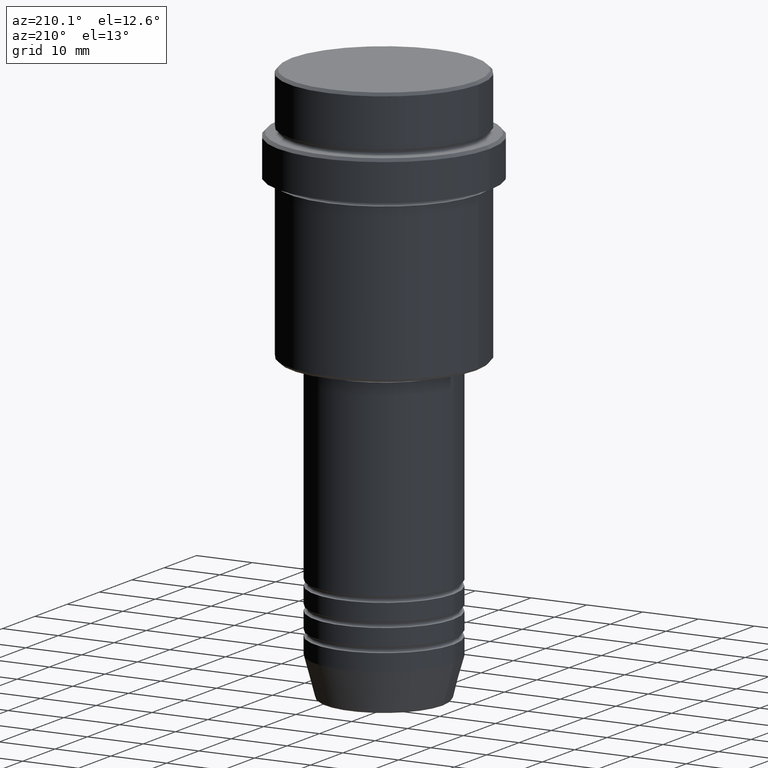
[diagram: clean part render]
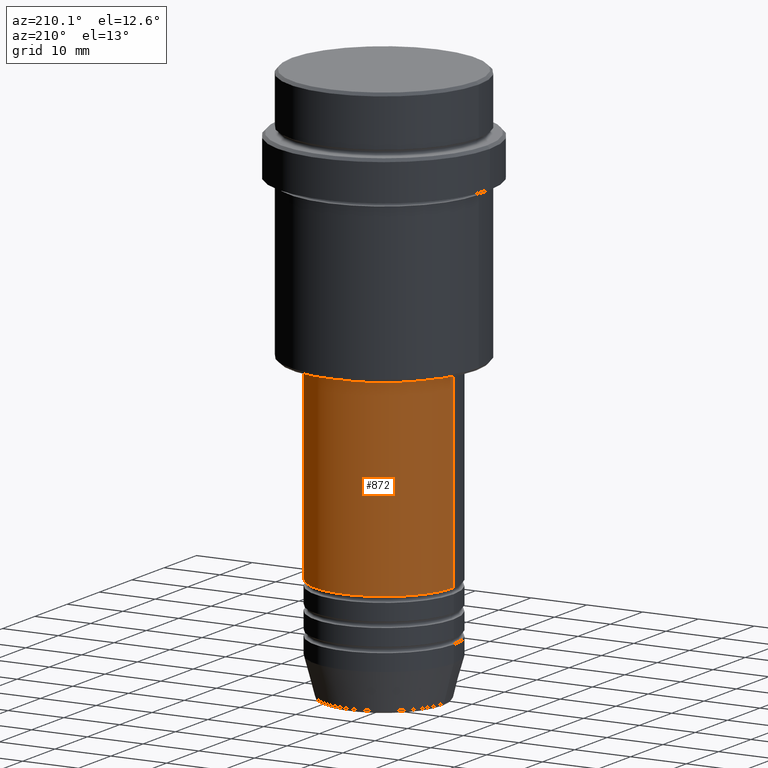
[diagram: same view with one face highlighted and labeled with its STEP entity id]
A machine part, auxiliary view. The second image highlights one B-rep face of the part: STEP entity #872.
In plain terms, the highlighted cylindrical surface (partial cylindrical patch) has radius 12.5 mm, axis along (-0, -0, 1).
Its self-contained STEP definition (entity closure, byte-faithful):
#8 = CARTESIAN_POINT ( 'NONE',  ( 0.000000000000000000, 0.000000000000000000, -47.00000000000000000 ) ) ;
#72 = VERTEX_POINT ( 'NONE', #935 ) ;
#89 = VERTEX_POINT ( 'NONE', #930 ) ;
#108 = VERTEX_POINT ( 'NONE', #276 ) ;
#220 = ORIENTED_EDGE ( 'NONE', *, *, #1268, .F. ) ;
#230 = DIRECTION ( 'NONE',  ( -0.000000000000000000, -0.000000000000000000, 1.000000000000000000 ) ) ;
#261 = CYLINDRICAL_SURFACE ( 'NONE', #649, 12.50000000000000000 ) ;
#276 = CARTESIAN_POINT ( 'NONE',  ( 12.50000000000000000, 0.000000000000000000, -80.99999999999987210 ) ) ;
#394 = CIRCLE ( 'NONE', #558, 12.50000000000000000 ) ;
#406 = ORIENTED_EDGE ( 'NONE', *, *, #1302, .F. ) ;
#513 = VECTOR ( 'NONE', #1023, 1000.000000000000000 ) ;
#558 = AXIS2_PLACEMENT_3D ( 'NONE', #8, #1187, #668 ) ;
#569 = LINE ( 'NONE', #1229, #513 ) ;
#606 = CIRCLE ( 'NONE', #1196, 12.50000000000000000 ) ;
#617 = DIRECTION ( 'NONE',  ( 1.000000000000000000, 0.000000000000000000, 0.000000000000000000 ) ) ;
#649 = AXIS2_PLACEMENT_3D ( 'NONE', #700, #1277, #739 ) ;
#668 = DIRECTION ( 'NONE',  ( 1.000000000000000000, 0.000000000000000000, 0.000000000000000000 ) ) ;
#687 = LINE ( 'NONE', #996, #724 ) ;
#700 = CARTESIAN_POINT ( 'NONE',  ( 0.000000000000000000, 0.000000000000000000, 0.000000000000000000 ) ) ;
#724 = VECTOR ( 'NONE', #230, 1000.000000000000000 ) ;
#739 = DIRECTION ( 'NONE',  ( 1.000000000000000000, 0.000000000000000000, 0.000000000000000000 ) ) ;
#765 = ORIENTED_EDGE ( 'NONE', *, *, #1399, .T. ) ;
#872 = ADVANCED_FACE ( 'NONE', ( #1232 ), #261, .T. ) ;
#908 = EDGE_CURVE ( 'NONE', #108, #72, #606, .T. ) ;
#926 = ORIENTED_EDGE ( 'NONE', *, *, #908, .T. ) ;
#930 = CARTESIAN_POINT ( 'NONE',  ( -12.50000000000000000, 1.530808498934191521E-15, -47.00000000000000000 ) ) ;
#935 = CARTESIAN_POINT ( 'NONE',  ( -12.50000000000000000, 1.530808498934191521E-15, -80.99999999999987210 ) ) ;
#996 = CARTESIAN_POINT ( 'NONE',  ( -12.50000000000000000, 1.530808498934191521E-15, 0.000000000000000000 ) ) ;
#1023 = DIRECTION ( 'NONE',  ( -0.000000000000000000, -0.000000000000000000, 1.000000000000000000 ) ) ;
#1068 = EDGE_LOOP ( 'NONE', ( #926, #765, #220, #406 ) ) ;
#1159 = CARTESIAN_POINT ( 'NONE',  ( 0.000000000000000000, 0.000000000000000000, -80.99999999999987210 ) ) ;
#1168 = CARTESIAN_POINT ( 'NONE',  ( 12.50000000000000000, 0.000000000000000000, -47.00000000000000000 ) ) ;
#1187 = DIRECTION ( 'NONE',  ( -0.000000000000000000, -0.000000000000000000, 1.000000000000000000 ) ) ;
#1196 = AXIS2_PLACEMENT_3D ( 'NONE', #1159, #1366, #617 ) ;
#1229 = CARTESIAN_POINT ( 'NONE',  ( 12.50000000000000000, 0.000000000000000000, 0.000000000000000000 ) ) ;
#1232 = FACE_OUTER_BOUND ( 'NONE', #1068, .T. ) ;
#1268 = EDGE_CURVE ( 'NONE', #1356, #89, #394, .T. ) ;
#1277 = DIRECTION ( 'NONE',  ( -0.000000000000000000, -0.000000000000000000, 1.000000000000000000 ) ) ;
#1302 = EDGE_CURVE ( 'NONE', #108, #1356, #569, .T. ) ;
#1356 = VERTEX_POINT ( 'NONE', #1168 ) ;
#1366 = DIRECTION ( 'NONE',  ( -0.000000000000000000, -0.000000000000000000, 1.000000000000000000 ) ) ;
#1399 = EDGE_CURVE ( 'NONE', #72, #89, #687, .T. ) ;